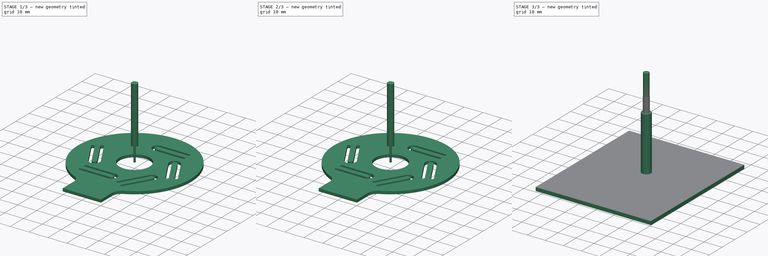
[diagram: build sequence overview — one tinted view per stage of 3, left to right]
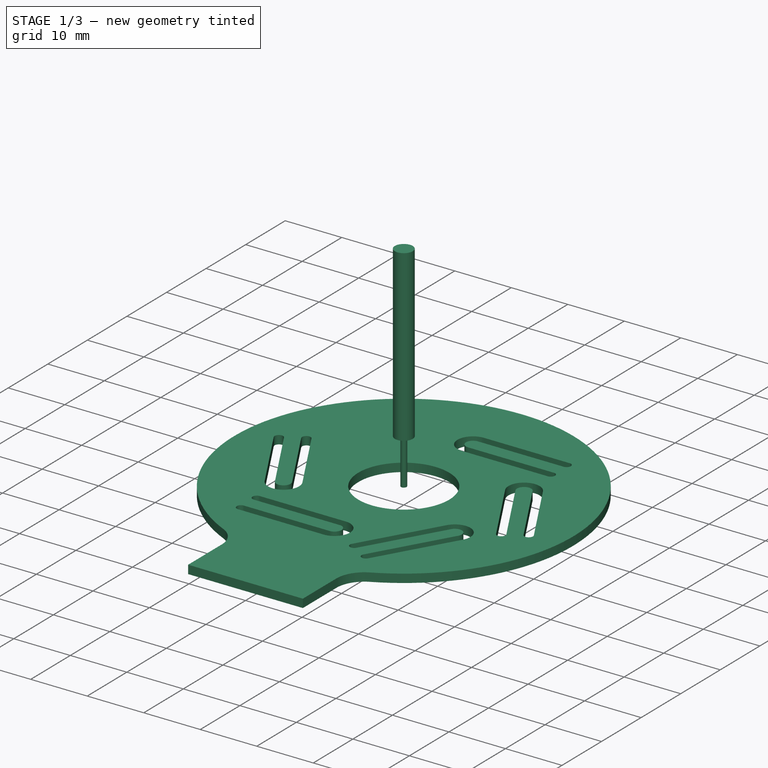
[diagram: stage 1 of 3 — iso view after this stage's code; geometry added in this stage tinted green]
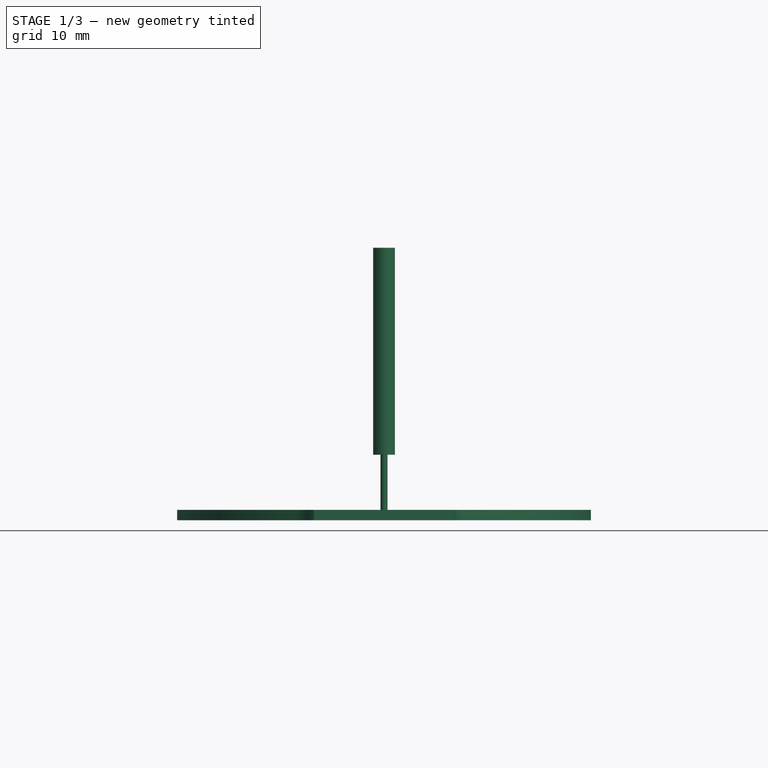
[diagram: stage 1 of 3 — front view after this stage's code; geometry added in this stage tinted green]
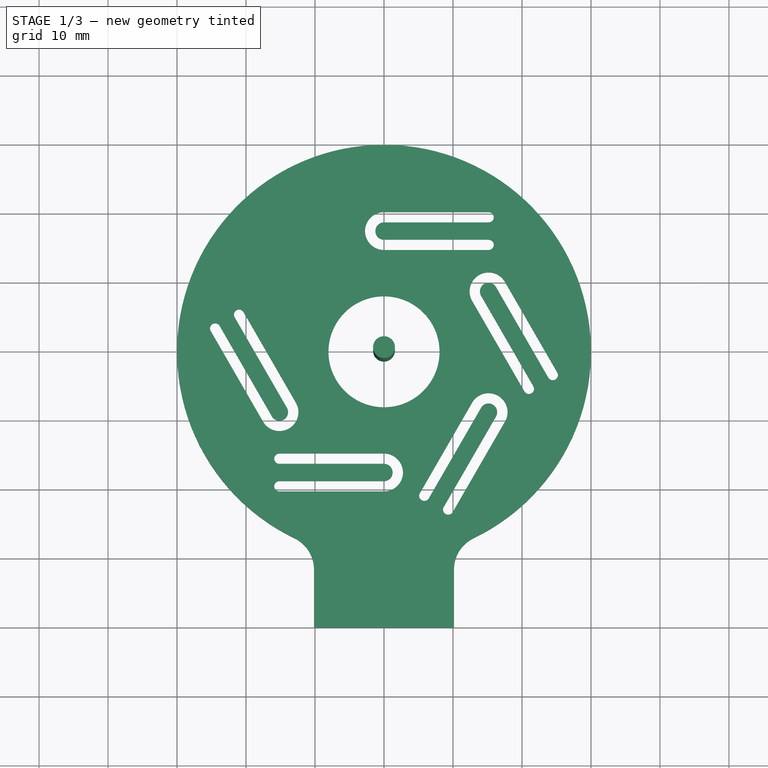
[diagram: stage 1 of 3 — top view after this stage's code; geometry added in this stage tinted green]
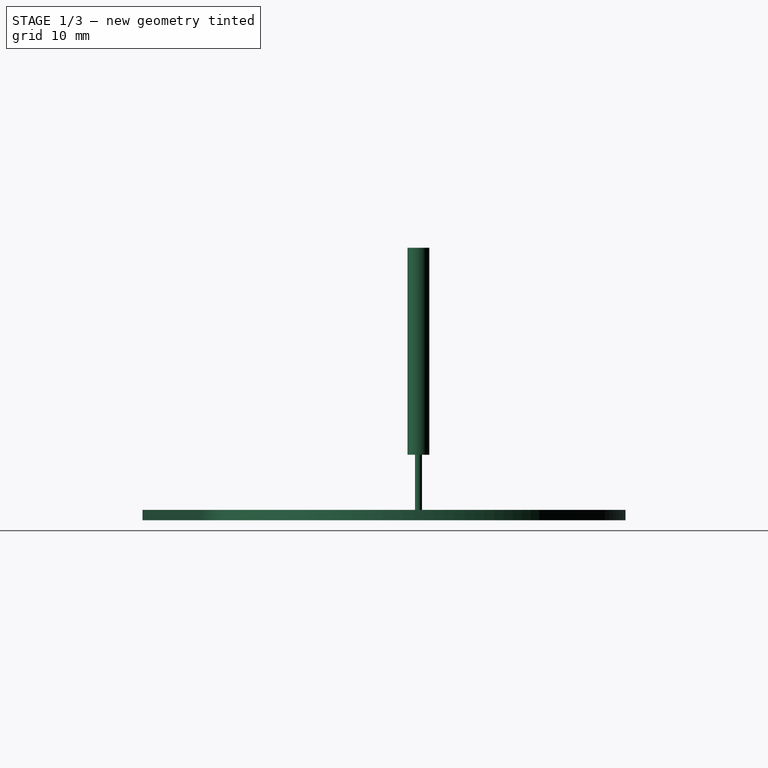
[diagram: stage 1 of 3 — right view after this stage's code; geometry added in this stage tinted green]
FCSTD DOCUMENT  (FreeCAD 0.22R37841 (Git))
Label: Prog
License: All rights reserved
LicenseURL: http://en.wikipedia.org/wiki/All_rights_reserved
objects: Path::FeaturePython×5, Part::FeaturePython×4, App::DocumentObjectGroup×3, Sketcher::SketchObject×1, PartDesign::Pad×1, PartDesign::Body×1, App::Part×1, App::FeaturePython×1
note: 10 computed .brp shape members not serialized (recipe doc carries the construction recipe); baked Part::Feature solids carry a one-line shape summary decoded from their .brp

FEATURE [Sketcher::SketchObject] Sketch
  AttachmentSupport = -> [XY_Plane001]
  FullyConstrained = true
  MapMode = 5
  sketch-geometry (56):
    g0: ArcOfCircle CenterX=0 CenterY=0 CenterZ=0 NormalX=0 NormalY=0 NormalZ=1 AngleXU=0 Radius=30 StartAngle=5.16005 EndAngle=10.5479
    g1: ArcOfCircle CenterX=-15.15 CenterY=-31.5512 CenterZ=0 NormalX=0 NormalY=0 NormalZ=1 AngleXU=0 Radius=5 StartAngle=0 EndAngle=1.12314
    g2: ArcOfCircle CenterX=15.15 CenterY=-31.5512 CenterZ=0 NormalX=0 NormalY=0 NormalZ=1 AngleXU=0 Radius=5 StartAngle=2.01846 EndAngle=3.14159
    g3: LineSegment StartX=-10.15 StartY=-31.5512 StartZ=0 EndX=-10.15 EndY=-40 EndZ=0
    g4: LineSegment StartX=10.15 StartY=-40 StartZ=0 EndX=10.15 EndY=-31.5512 EndZ=0
    g5: LineSegment StartX=-10.15 StartY=-40 StartZ=0 EndX=0 EndY=-40 EndZ=0
    g6: LineSegment StartX=0 StartY=-40 StartZ=0 EndX=10.15 EndY=-40 EndZ=0
    g7: LineSegment StartX=-15.1554 StartY=-8.75 StartZ=0 EndX=0 EndY=-17.5 EndZ=0
    g8: LineSegment StartX=0 StartY=-17.5 StartZ=0 EndX=15.1554 EndY=-8.75 EndZ=0
    g9: LineSegment StartX=15.1554 StartY=-8.75 StartZ=0 EndX=15.1554 EndY=8.75 EndZ=0
    g10: LineSegment StartX=15.1554 StartY=8.75 StartZ=0 EndX=-1.8e-15 EndY=17.5 EndZ=0
    g11: LineSegment StartX=-1.8e-15 StartY=17.5 StartZ=0 EndX=-15.1554 EndY=8.75 EndZ=0
    g12: LineSegment StartX=-15.1554 StartY=8.75 StartZ=0 EndX=-15.1554 EndY=-8.75 EndZ=0
    g13: Circle CenterX=0 CenterY=0 CenterZ=0 NormalX=0 NormalY=0 NormalZ=1 AngleXU=0 Radius=17.5
    g14: ArcOfCircle CenterX=-15.1554 CenterY=-8.75 CenterZ=0 NormalX=0 NormalY=0 NormalZ=1 AngleXU=0 Radius=1.25 StartAngle=3.66519 EndAngle=6.80678
    g15: ArcOfCircle CenterX=-15.1554 CenterY=-8.75 CenterZ=0 NormalX=0 NormalY=0 NormalZ=1 AngleXU=0 Radius=2.75 StartAngle=3.66519 EndAngle=6.80678
    g16: LineSegment StartX=-17.537 StartY=-10.125 StartZ=0 EndX=-25.1147 EndY=3 EndZ=0
    g17: LineSegment StartX=-16.238 StartY=-9.375 StartZ=0 EndX=-23.8157 EndY=3.75 EndZ=0
    g18: LineSegment StartX=-14.0729 StartY=-8.125 StartZ=0 EndX=-21.6506 EndY=5 EndZ=0
    g19: LineSegment StartX=-12.7739 StartY=-7.375 StartZ=0 EndX=-20.3516 EndY=5.75 EndZ=0
    g20: ArcOfCircle CenterX=-24.4652 CenterY=3.375 CenterZ=0 NormalX=0 NormalY=0 NormalZ=1 AngleXU=0 Radius=0.75 StartAngle=0.523599 EndAngle=3.66519
    g21: ArcOfCircle CenterX=-21.0011 CenterY=5.375 CenterZ=0 NormalX=0 NormalY=0 NormalZ=1 AngleXU=0 Radius=0.75 StartAngle=0.523599 EndAngle=3.66519
    g22: ArcOfCircle CenterX=0 CenterY=-17.5 CenterZ=0 NormalX=0 NormalY=0 NormalZ=1 AngleXU=0 Radius=1.25 StartAngle=4.71239 EndAngle=7.85398
    g23: ArcOfCircle CenterX=0 CenterY=-17.5 CenterZ=0 NormalX=0 NormalY=0 NormalZ=1 AngleXU=0 Radius=2.75 StartAngle=4.71239 EndAngle=7.85398
    g24: LineSegment StartX=-5e-16 StartY=-20.25 StartZ=0 EndX=-15.1554 EndY=-20.25 EndZ=0
    g25: LineSegment StartX=-2e-16 StartY=-18.75 StartZ=0 EndX=-15.1554 EndY=-18.75 EndZ=0
    g26: LineSegment StartX=4e-16 StartY=-16.25 StartZ=0 EndX=-15.1554 EndY=-16.25 EndZ=0
    g27: LineSegment StartX=8e-16 StartY=-14.75 StartZ=0 EndX=-15.1554 EndY=-14.75 EndZ=0
    g28: ArcOfCircle CenterX=-15.1554 CenterY=-19.5 CenterZ=0 NormalX=0 NormalY=0 NormalZ=1 AngleXU=0 Radius=0.75 StartAngle=1.5708 EndAngle=4.71239
    g29: ArcOfCircle CenterX=-15.1554 CenterY=-15.5 CenterZ=0 NormalX=0 NormalY=0 NormalZ=1 AngleXU=0 Radius=0.75 StartAngle=1.5708 EndAngle=4.71239
    g30: ArcOfCircle CenterX=15.1554 CenterY=-8.75 CenterZ=0 NormalX=0 NormalY=0 NormalZ=1 AngleXU=0 Radius=1.25 StartAngle=5.75959 EndAngle=8.90118
    g31: ArcOfCircle CenterX=15.1554 CenterY=-8.75 CenterZ=0 NormalX=0 NormalY=0 NormalZ=1 AngleXU=0 Radius=2.75 StartAngle=5.75959 EndAngle=8.90118
    g32: LineSegment StartX=17.537 StartY=-10.125 StartZ=0 EndX=9.95929 EndY=-23.25 EndZ=0
    g33: LineSegment StartX=16.238 StartY=-9.375 StartZ=0 EndX=8.66025 EndY=-22.5 EndZ=0
    g34: LineSegment StartX=14.0729 StartY=-8.125 StartZ=0 EndX=6.49519 EndY=-21.25 EndZ=0
    g35: LineSegment StartX=12.7739 StartY=-7.375 StartZ=0 EndX=5.19615 EndY=-20.5 EndZ=0
    g36: ArcOfCircle CenterX=9.30977 CenterY=-22.875 CenterZ=0 NormalX=0 NormalY=0 NormalZ=1 AngleXU=0 Radius=0.75 StartAngle=2.61799 EndAngle=5.75959
    g37: ArcOfCircle CenterX=5.84567 CenterY=-20.875 CenterZ=0 NormalX=0 NormalY=0 NormalZ=1 AngleXU=0 Radius=0.75 StartAngle=2.61799 EndAngle=5.75959
    g38: ArcOfCircle CenterX=15.1554 CenterY=8.75 CenterZ=0 NormalX=0 NormalY=0 NormalZ=1 AngleXU=0 Radius=1.25 StartAngle=0.523599 EndAngle=3.66519
    g39: ArcOfCircle CenterX=15.1554 CenterY=8.75 CenterZ=0 NormalX=0 NormalY=0 NormalZ=1 AngleXU=0 Radius=2.75 StartAngle=0.523599 EndAngle=3.66519
    g40: LineSegment StartX=17.537 StartY=10.125 StartZ=0 EndX=25.1147 EndY=-3 EndZ=0
    g41: LineSegment StartX=16.238 StartY=9.375 StartZ=0 EndX=23.8157 EndY=-3.75 EndZ=0
    g42: LineSegment StartX=14.0729 StartY=8.125 StartZ=0 EndX=21.6506 EndY=-5 EndZ=0
    g43: LineSegment StartX=12.7739 StartY=7.375 StartZ=0 EndX=20.3516 EndY=-5.75 EndZ=0
    g44: ArcOfCircle CenterX=24.4652 CenterY=-3.375 CenterZ=0 NormalX=0 NormalY=0 NormalZ=1 AngleXU=0 Radius=0.75 StartAngle=3.66519 EndAngle=6.80678
    g45: ArcOfCircle CenterX=21.0011 CenterY=-5.375 CenterZ=0 NormalX=0 NormalY=0 NormalZ=1 AngleXU=0 Radius=0.75 StartAngle=3.66519 EndAngle=6.80678
    g46: ArcOfCircle CenterX=-1.8e-15 CenterY=17.5 CenterZ=0 NormalX=0 NormalY=0 NormalZ=1 AngleXU=0 Radius=1.25 StartAngle=1.5708 EndAngle=4.71239
    g47: ArcOfCircle CenterX=-1.8e-15 CenterY=17.5 CenterZ=0 NormalX=0 NormalY=0 NormalZ=1 AngleXU=0 Radius=2.75 StartAngle=1.5708 EndAngle=4.71239
    g48: LineSegment StartX=-1.6e-15 StartY=20.25 StartZ=0 EndX=15.1554 EndY=20.25 EndZ=0
    g49: LineSegment StartX=-1.7e-15 StartY=18.75 StartZ=0 EndX=15.1554 EndY=18.75 EndZ=0
    g50: LineSegment StartX=-2e-15 StartY=16.25 StartZ=0 EndX=15.1554 EndY=16.25 EndZ=0
    g51: LineSegment StartX=-2.3e-15 StartY=14.75 StartZ=0 EndX=15.1554 EndY=14.75 EndZ=0
    g52: ArcOfCircle CenterX=15.1554 CenterY=19.5 CenterZ=0 NormalX=0 NormalY=0 NormalZ=1 AngleXU=0 Radius=0.75 StartAngle=4.71239 EndAngle=7.85398
    g53: ArcOfCircle CenterX=15.1554 CenterY=15.5 CenterZ=0 NormalX=0 NormalY=0 NormalZ=1 AngleXU=0 Radius=0.75 StartAngle=4.71239 EndAngle=7.85398
    g54: Circle CenterX=0 CenterY=0 CenterZ=0 NormalX=0 NormalY=0 NormalZ=1 AngleXU=0 Radius=8.05
    g55: LineSegment StartX=0 StartY=0 StartZ=0 EndX=0 EndY=-40 EndZ=0
  constraints (131):
    c: Tangent(g1,g0) = 1.5708
    c: Tangent(g2,g0) = 1.5708
    c: Coincident(g5,g3)
    c: Coincident(g6,g5)
    c: Coincident(g6,g4)
    c: Equal(g5,g6)
    c: Equal(g2,g1)
    c: Coincident(g0,g-1)
    c: Tangent(g3,g1) = 1.5708
    c: Tangent(g4,g2) = 1.5708
    c: Coincident(g7,g8)
    c: Coincident(g8,g9)
    c: Coincident(g9,g10)
    c: Coincident(g10,g11)
    c: Coincident(g11,g12)
    c: Equal(g7, g8-g12) x5
    c: PointOnObject(g7,g13)
    c: PointOnObject(g8,g13)
    c: PointOnObject(g9,g13)
    c: PointOnObject(g10,g13)
    c: PointOnObject(g11,g13)
    c: Coincident(g13,g0)
    c: Diameter(g13) = 35
    c: Coincident(g14,g7)
    c: Coincident(g15,g7)
    c: Tangent(g20,g16) = 1.5708
    c: Tangent(g20,g17) = -1.5708
    c: Tangent(g21,g18) = 1.5708
    c: Tangent(g21,g19) = -1.5708
    c: Radius(g21) = 0.75
    c: Radius(g14) = 1.25
    c: Tangent(g28,g24) = 1.5708
    c: Tangent(g36,g32) = 1.5708
    c: Tangent(g44,g40) = 1.5708
    c: Tangent(g52,g48) = 1.5708
    c: Tangent(g28,g25) = -1.5708
    c: Tangent(g36,g33) = -1.5708
    c: Tangent(g44,g41) = -1.5708
    c: Tangent(g52,g49) = -1.5708
    c: Tangent(g29,g26) = 1.5708
    c: Tangent(g37,g34) = 1.5708
    c: Tangent(g45,g42) = 1.5708
    c: Tangent(g53,g50) = 1.5708
    c: Tangent(g29,g27) = -1.5708
    c: Tangent(g37,g35) = -1.5708
    c: Tangent(g45,g43) = -1.5708
    c: Tangent(g53,g51) = -1.5708
    c: Equal(g21,g29)
    c: Equal(g21,g37)
    c: Equal(g21,g45)
    c: Equal(g21,g53)
    c: Equal(g14,g22)
    c: Equal(g14,g30)
    c: Equal(g14,g38)
    c: Equal(g14,g46)
    c: Tangent(g35,g31) = -1.5708
    c: Tangent(g34,g30) = -1.5708
    c: Tangent(g33,g30) = 1.5708
    c: Tangent(g32,g31) = 1.5708
    c: Perpendicular(g27,g12)
    c: Parallel(g27,g26)
    c: Perpendicular(g35,g7)
    c: PointOnObject(g29,g12)
    c: PointOnObject(g28,g12)
    c: PointOnObject(g37,g7)
    c: PointOnObject(g36,g7)
    c: PointOnObject(g45,g8)
    c: PointOnObject(g44,g8)
    c: PointOnObject(g53,g9)
    c: PointOnObject(g52,g9)
    c: Coincident(g30,g31)
    c: Coincident(g30,g8)
    c: Coincident(g38,g39)
    c: Tangent(g43,g39) = -1.5708
    c: Coincident(g38,g9)
    c: Tangent(g42,g38) = -1.5708
    c: Tangent(g41,g38) = 1.5708
    c: Tangent(g40,g39) = 1.5708
    c: Coincident(g46,g47)
    c: Coincident(g46,g10)
    c: Tangent(g51,g47) = -1.5708
    c: Tangent(g50,g46) = -1.5708
    c: Tangent(g49,g46) = 1.5708
    c: Tangent(g48,g47) = 1.5708
    c: Perpendicular(g51,g9)
    c: Parallel(g51,g50)
    c: Parallel(g50,g49)
    c: Parallel(g49,g48)
    c: Parallel(g43,g42)
    c: Parallel(g42,g41)
    c: Parallel(g41,g40)
    c: Perpendicular(g8,g43)
    c: Parallel(g35,g34)
    c: Parallel(g34,g33)
    c: Parallel(g33,g32)
    c: Coincident(g22,g23)
    c: Coincident(g22,g7)
    c: Tangent(g26,g22) = -1.5708
    c: Tangent(g25,g22) = 1.5708
    c: Tangent(g24,g23) = 1.5708
    c: Tangent(g27,g23) = -1.5708
    c: Parallel(g26,g25)
    c: Parallel(g25,g24)
    c: Coincident(g54,g0)
    c: Diameter(g54) = 16.1
    c: Distance(g4,g3) = 20.3
    c: Radius(g0) = 30
    c: Radius(g2) = 5
    c: Coincident(g55,g0)
    c: Coincident(g55,g5)
    c: Perpendicular(g6,g55)
    c: Perpendicular(g55,g5)
    c: Parallel(g55,g3)
    c: Parallel(g55,g4)
    c: Distance(g55,g55) = 40
    c: PointOnObject(g7,g55)
    c: Tangent(g16,g15) = 1.5708
    c: Tangent(g19,g15) = -1.5708
    c: Tangent(g18,g14) = -1.5708
    c: Tangent(g17,g14) = 1.5708
    c: Coincident(g12,g7)
    c: PointOnObject(g7,g13)
    c: Parallel(g55,g-2)
    c: Parallel(g18,g19)
    c: Parallel(g17,g16)
    c: Parallel(g17,g18)
    c: Perpendicular(g11,g19)
    c: PointOnObject(g21,g11)
    c: PointOnObject(g20,g11)
    c: DistanceX(g7,g-1) = 15.1554
    c: DistanceY(g7,g-1) = 8.75
FEATURE [PartDesign::Pad] Pad
  Direction = (0,0,1)
  Length = 1.5
  Length2 = 10
  Profile = -> Sketch
  ReferenceAxis = -> Sketch [N_Axis]
  Reversed = true
  Suppressed = false
  Type = 0
FEATURE [Part::FeaturePython] ToolBit001  label="1mm Endmill"  # Path/CAM toolbit (typed FeaturePython)
  BitPropertyNames = Chipload | CuttingEdgeHeight | Diameter | Flutes | Length | Material | ShankDiameter | SpindleDirection
  BitShape = <userpath>/Documents/FreeCAD/Tools/Shape/endmill.fcstd
  Chipload = 0
  CuttingEdgeHeight = 8
  Diameter = 1
  File = <userpath>/Documents/FreeCAD/Tools/Bit/1mm_Endmill.fctb
  Flutes = 2
  Length = 38
  Material = 0
  ShankDiameter = 3.17
  ShapeName = endmill
  SpindleDirection = 0
FEATURE [Path::FeaturePython] _mm_Endmill  label="1mm Endmill001"  # Path/CAM operation (typed FeaturePython)
  HorizFeed = 2
  HorizRapid = 0
  SpindleDir = 0
  SpindleSpeed = 1000
  Tool = -> ToolBit001
  ToolNumber = 2
  VertFeed = 1
  VertRapid = 0
  expr: HorizRapid = SetupSheet.HorizRapid
  expr: VertRapid = SetupSheet.VertRapid
FEATURE [App::DocumentObjectGroup] Tools
  Group = -> [TC__Default_Tool,_mm_Endmill]
FEATURE [Path::FeaturePython] Profile  # Path/CAM operation (typed FeaturePython)
  Active = true
  AreaParams:
    Tolerance = 1e-07
    FitArcs = True
    Simplify = False
    CleanDistance = 0.0
    Accuracy = 0.01
    Unit = 1.0
    MinArcPoints = 4
    MaxArcPoints = 100
    ClipperScale = 10000000.0
    Fill = 0
    Coplanar = 0
    Reorient = True
    Outline = False
    Explode = False
    OpenMode = 0
    Deflection = 0.01
    SubjectFill = 0
    ClipFill = 0
    Offset = -0.5
    ExtraPass = 0
    Stepover = 0.0
    LastStepover = 0.0
    JoinType = 0
    EndType = 0
    MiterLimit = 2.0
    RoundPrecision = 0.0
    PocketMode = 0
    ToolRadius = 1.0
    PocketExtraOffset = 0.0
    PocketStepover = 0.0
    PocketLastStepover = 0.0
    FromCenter = False
    Angle = 45.0
    AngleShift = 0.0
    Shift = 0.0
    Thicken = False
    SectionCount = -1
    Stepdown = 1.0
    SectionOffset = 0.0
    SectionTolerance = 1e-06
    SectionMode = 2
    Project = False
  Base = -> [Clone]
  ClearanceHeight = 5
  CoolantMode = 0
  CycleTime = 00:14:28
  Direction = 0
  FinalDepth = -2
  HandleMultipleFeatures = 0
  JoinType = 0
  MiterLimit = 0.1
  OffsetExtra = 0
  OpFinalDepth = -1.5
  OpStartDepth = 0
  OpStockZMax = 0
  OpStockZMin = -2
  OpToolDiameter = 1
  PathParams = {'orientation': 1, 'feedrate': 2.0, 'feedrate_v': 1.0, 'verbose': True, 'resume_height': 3.0, 'retraction': 5.0, 'return_end': True, 'preamble': False, 'start': Vector (1.8108427845089694, -16.16764649908977, 5.0)}
  SafeHeight = 3
  Side = 1
  SplitArcs = false
  StartDepth = 0
  StartPoint = (0,0,0)
  StepDown = 0.5
  ToolController = -> _mm_Endmill
  UseComp = true
  UseStartPoint = false
  processCircles = false
  processHoles = false
  processPerimeter = true
  expr: ClearanceHeight = OpStockZMax + SetupSheet.ClearanceHeightOffset
  expr: FinalDepth = -2
  expr: SafeHeight = OpStockZMax + SetupSheet.SafeHeightOffset
  expr: StartDepth = OpStartDepth
  expr: StepDown = 0.5
FEATURE [Path::FeaturePython] Profile001  # Path/CAM operation (typed FeaturePython)
  Active = true
  AreaParams:
    Tolerance = 1e-07
    FitArcs = True
    Simplify = False
    CleanDistance = 0.0
    Accuracy = 0.01
    Unit = 1.0
    MinArcPoints = 4
    MaxArcPoints = 100
    ClipperScale = 10000000.0
    Fill = 0
    Coplanar = 0
    Reorient = True
    Outline = False
    Explode = False
    OpenMode = 0
    Deflection = 0.01
    SubjectFill = 0
    ClipFill = 0
    Offset = 0.5
    ExtraPass = 0
    Stepover = 0.0
    LastStepover = 0.0
    JoinType = 0
    EndType = 0
    MiterLimit = 2.0
    RoundPrecision = 0.0
    PocketMode = 0
    ToolRadius = 1.0
    PocketExtraOffset = 0.0
    PocketStepover = 0.0
    PocketLastStepover = 0.0
    FromCenter = False
    Angle = 45.0
    AngleShift = 0.0
    Shift = 0.0
    Thicken = False
    SectionCount = -1
    Stepdown = 1.0
    SectionOffset = 0.0
    SectionTolerance = 1e-06
    SectionMode = 2
    Project = False
  Base = -> [Clone]
  ClearanceHeight = 5
  CoolantMode = 0
  CycleTime = 00:07:34
  Direction = 0
  FinalDepth = -2
  HandleMultipleFeatures = 0
  JoinType = 0
  MiterLimit = 0.1
  OffsetExtra = 0
  OpFinalDepth = -1.5
  OpStartDepth = 0
  OpStockZMax = 0
  OpStockZMin = -2
  OpToolDiameter = 1
  PathParams = {'orientation': 1, 'feedrate': 2.0, 'feedrate_v': 1.0, 'verbose': True, 'resume_height': 3.0, 'retraction': 5.0, 'return_end': True, 'preamble': False}
  SafeHeight = 3
  Side = 0
  SplitArcs = false
  StartDepth = 0
  StartPoint = (0,0,0)
  StepDown = 0.5
  ToolController = -> _mm_Endmill
  UseComp = true
  UseStartPoint = false
  processCircles = false
  processHoles = false
  processPerimeter = true
  expr: ClearanceHeight = OpStockZMax + SetupSheet.ClearanceHeightOffset
  expr: FinalDepth = -2
  expr: SafeHeight = OpStockZMax + SetupSheet.SafeHeightOffset
  expr: StartDepth = OpStartDepth
  expr: StepDown = 0.5
FEATURE [App::DocumentObjectGroup] Operations
  Group = -> [Profile,Profile001]
FEATURE [Path::FeaturePython] Job  # Path/CAM operation (typed FeaturePython)
  CycleTime = 00:22:02
  Fixtures = G54
  GeometryTolerance = 0.01
  JobType = 0
  Model = -> Model
  Operations = -> Operations
  OrderOutputBy = 0
  PostProcessor = 11
  SetupSheet = -> SetupSheet
  SplitOutput = false
  Stock = -> Stock
  Tools = -> Tools
note: 1 file-system path scrubbed to <path> (originals preserved in the JSON sidecar)
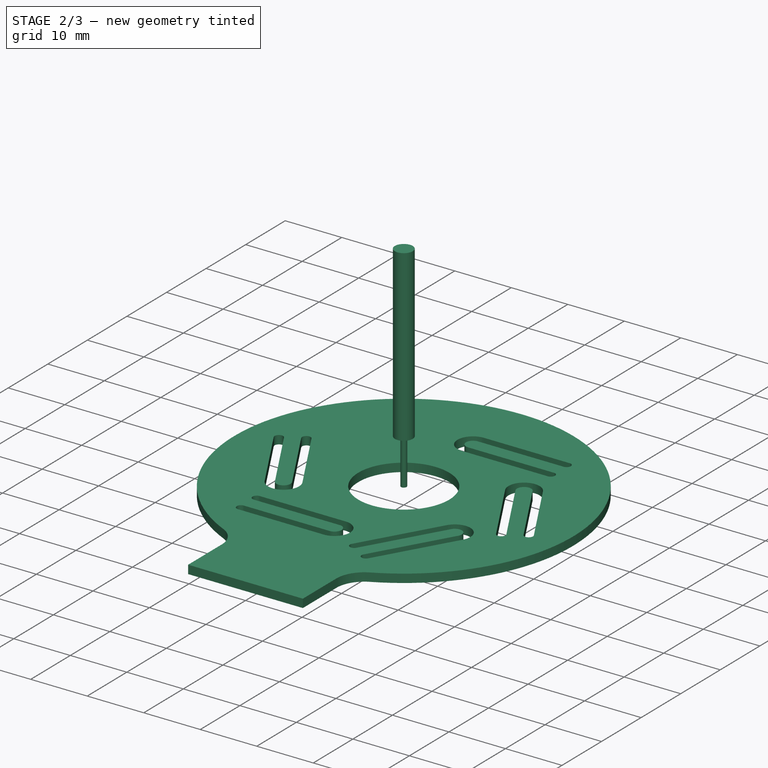
[diagram: stage 2 of 3 — iso view after this stage's code; geometry added in this stage tinted green]
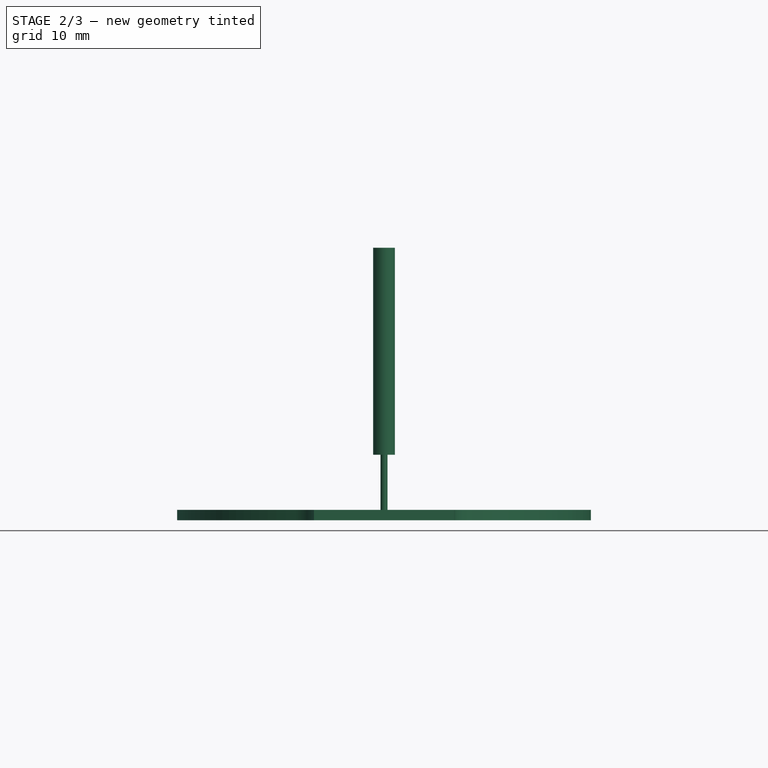
[diagram: stage 2 of 3 — front view after this stage's code; geometry added in this stage tinted green]
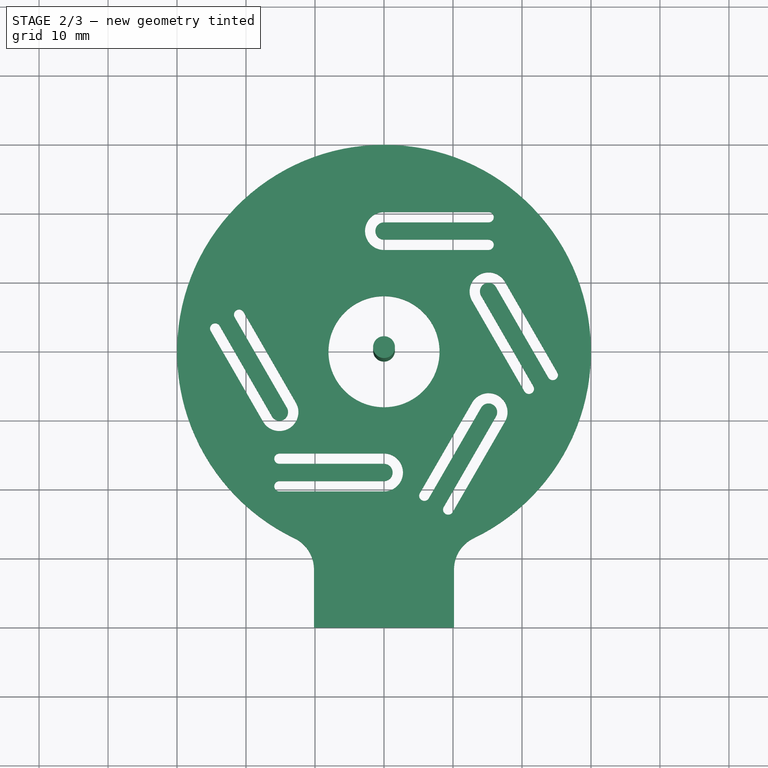
[diagram: stage 2 of 3 — top view after this stage's code; geometry added in this stage tinted green]
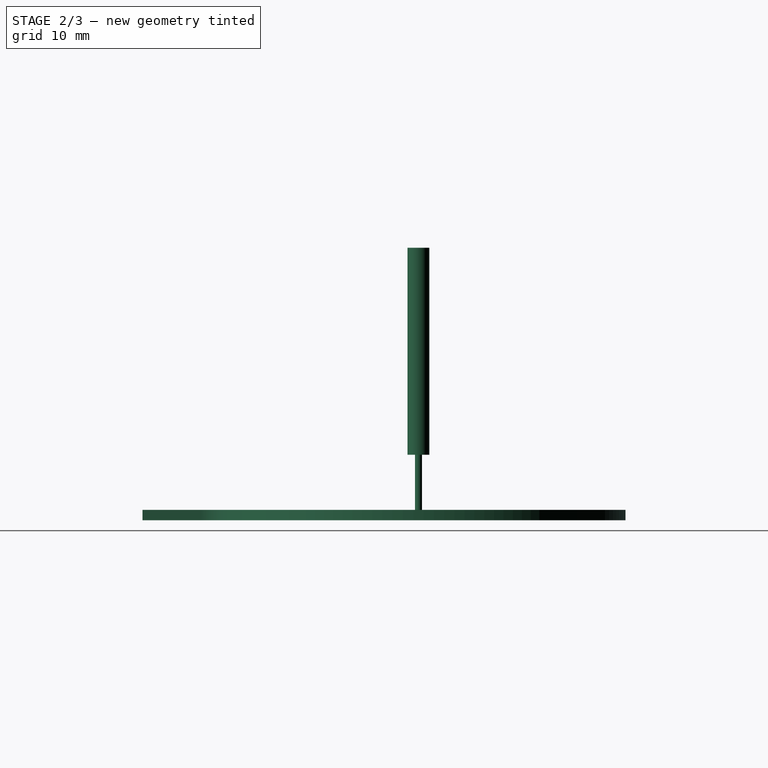
[diagram: stage 2 of 3 — right view after this stage's code; geometry added in this stage tinted green]
FEATURE [PartDesign::Body] Body
  AllowCompound = false
  Group = -> [Sketch,Pad]
  Origin = -> Origin001
  Tip = -> Pad
FEATURE [App::Part] Part
  Group = -> [Body]
  Origin = -> Origin
FEATURE [App::FeaturePython] SetupSheet  # Path/CAM operation (typed FeaturePython)
  ClearanceHeightExpression = OpStockZMax+SetupSheet.ClearanceHeightOffset
  ClearanceHeightOffset = 5
  CoolantMode = 0
  CoolantModes = None | Flood | Mist
  FinalDepthExpression = OpFinalDepth
  HorizRapid = 0
  SafeHeightExpression = OpStockZMax+SetupSheet.SafeHeightOffset
  SafeHeightOffset = 3
  StartDepthExpression = OpStartDepth
  StepDownExpression = OpToolDiameter
  VertRapid = 0
FEATURE [Part::FeaturePython] Clone  label="Model-Part"  # Draft clone (typed FeaturePython)
  AttacherType = Attacher::AttachEngine3D
  Fuse = false
  Objects = -> [Part]
  PathResource = Model
  Scale = (1,1,1)
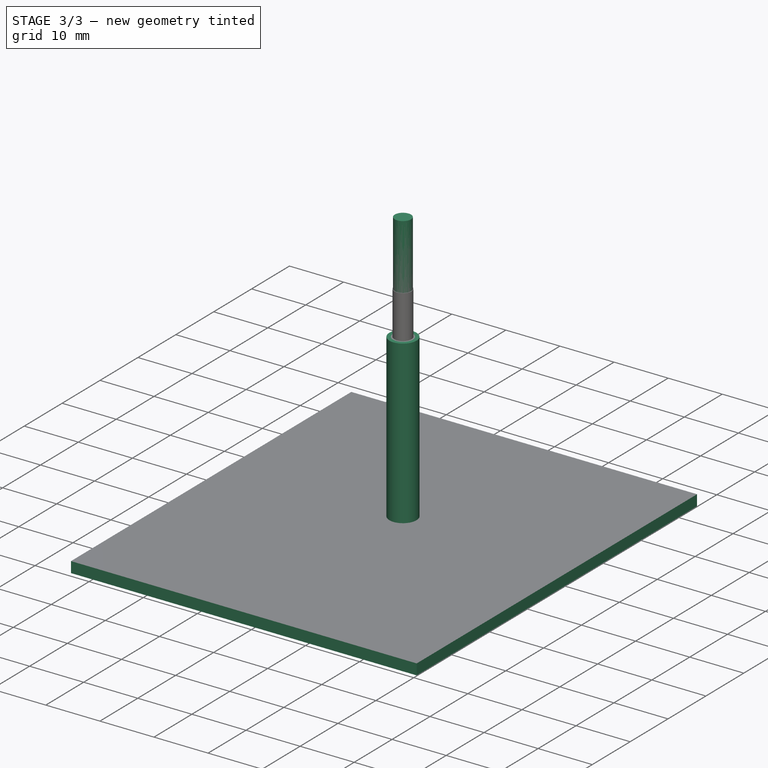
[diagram: stage 3 of 3 — iso view after this stage's code; geometry added in this stage tinted green]
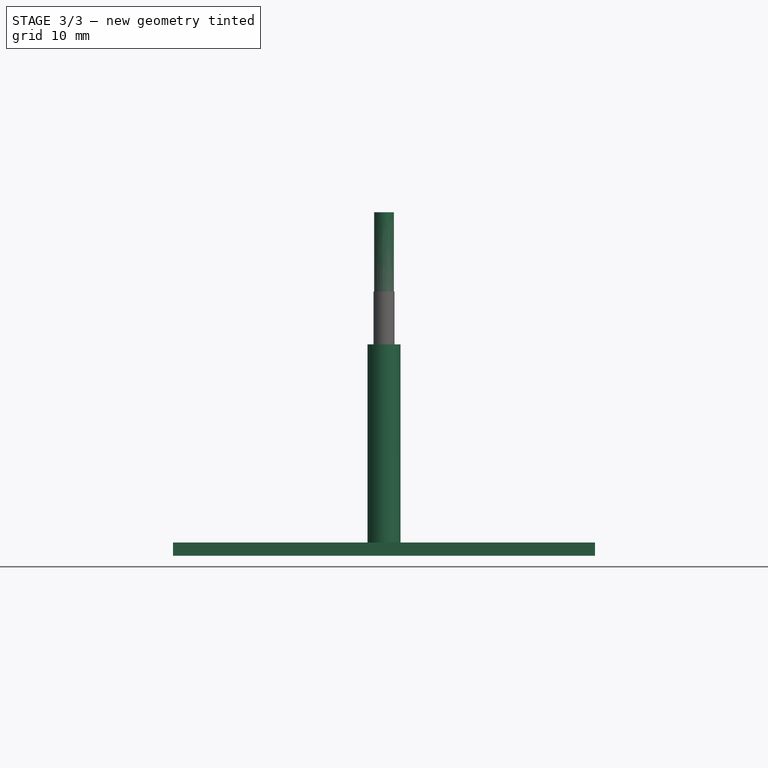
[diagram: stage 3 of 3 — front view after this stage's code; geometry added in this stage tinted green]
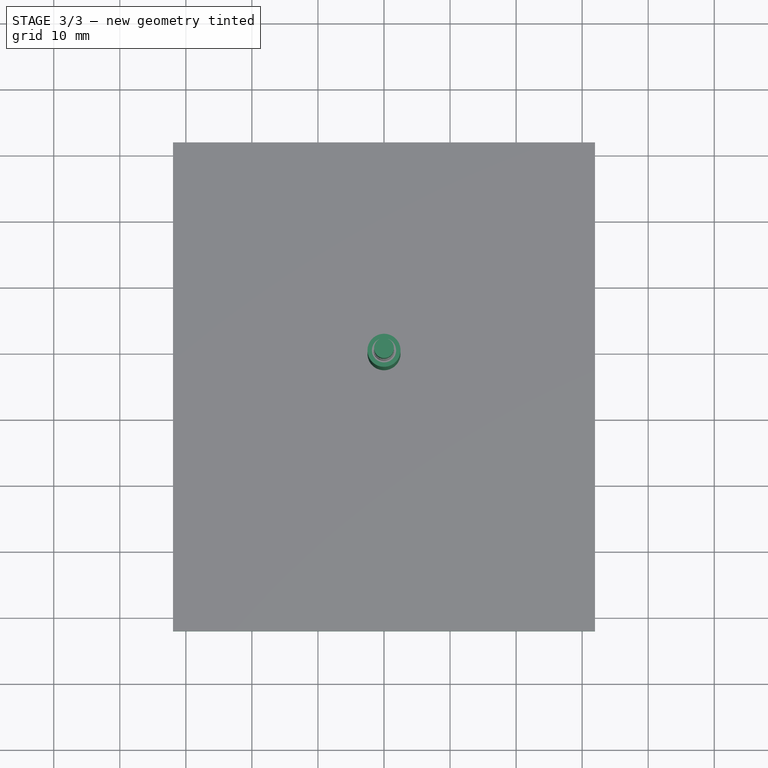
[diagram: stage 3 of 3 — top view after this stage's code; geometry added in this stage tinted green]
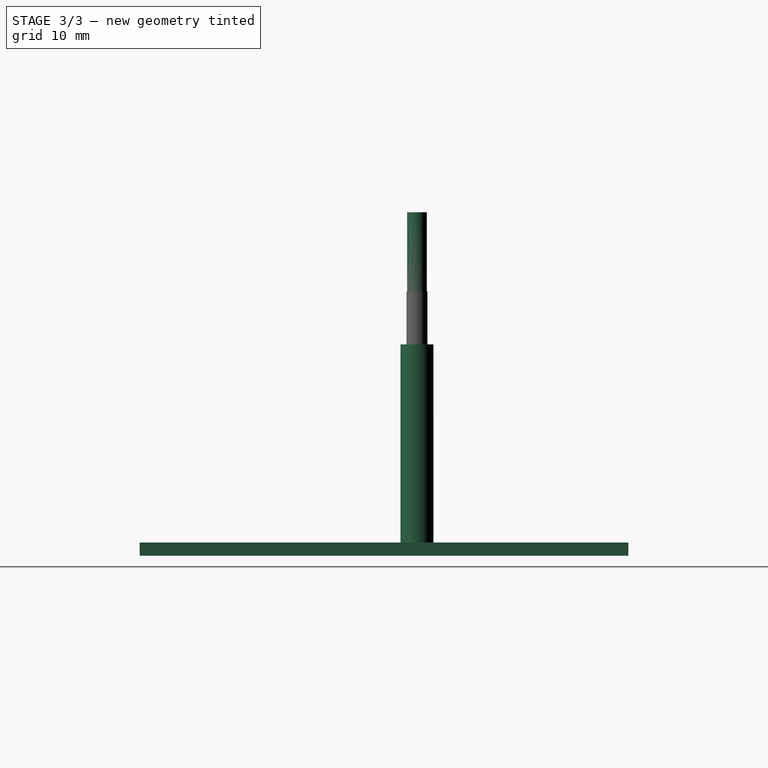
[diagram: stage 3 of 3 — right view after this stage's code; geometry added in this stage tinted green]
FEATURE [App::DocumentObjectGroup] Model
  Group = -> [Clone]
FEATURE [Part::FeaturePython] ToolBit  label="Endmill"  # Path/CAM toolbit (typed FeaturePython)
  BitPropertyNames = Chipload | CuttingEdgeHeight | Diameter | Flutes | Length | Material | ShankDiameter | SpindleDirection
  BitShape = <path>
  Chipload = 0
  CuttingEdgeHeight = 30
  Diameter = 5
  Flutes = 0
  Length = 50
  Material = 0
  ShankDiameter = 3
  ShapeName = endmill
  SpindleDirection = 0
FEATURE [Path::FeaturePython] TC__Default_Tool  label="TC: Default Tool"  # Path/CAM operation (typed FeaturePython)
  HorizFeed = 0
  HorizRapid = 0
  SpindleDir = 0
  SpindleSpeed = 0
  Tool = -> ToolBit
  ToolNumber = 1
  VertFeed = 0
  VertRapid = 0
  expr: HorizRapid = SetupSheet.HorizRapid
  expr: VertRapid = SetupSheet.VertRapid
FEATURE [Part::FeaturePython] Stock  # WARN: FeaturePython — macro-defined, semantics opaque (R4)
  Base = -> Model
  ExtXneg = 2
  ExtXpos = 2
  ExtYneg = 2
  ExtYpos = 2
  ExtZneg = 0.5
  ExtZpos = 0
  Placement = pos=(-29.9539,-40,-1.5) rot=(0,0,1;0rad)
  StockType = FromBase
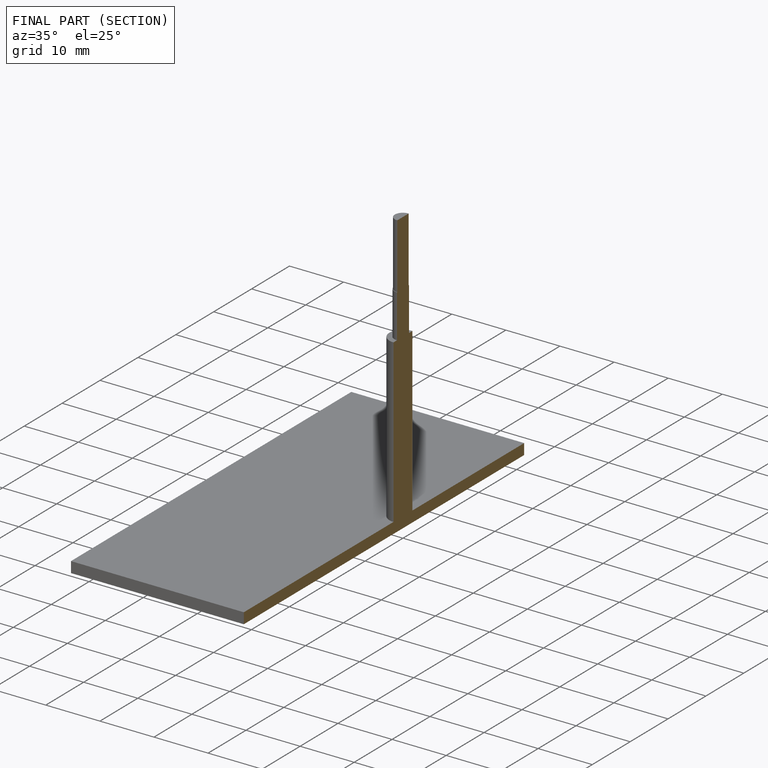
[diagram: finished part — half-section view (interior)]
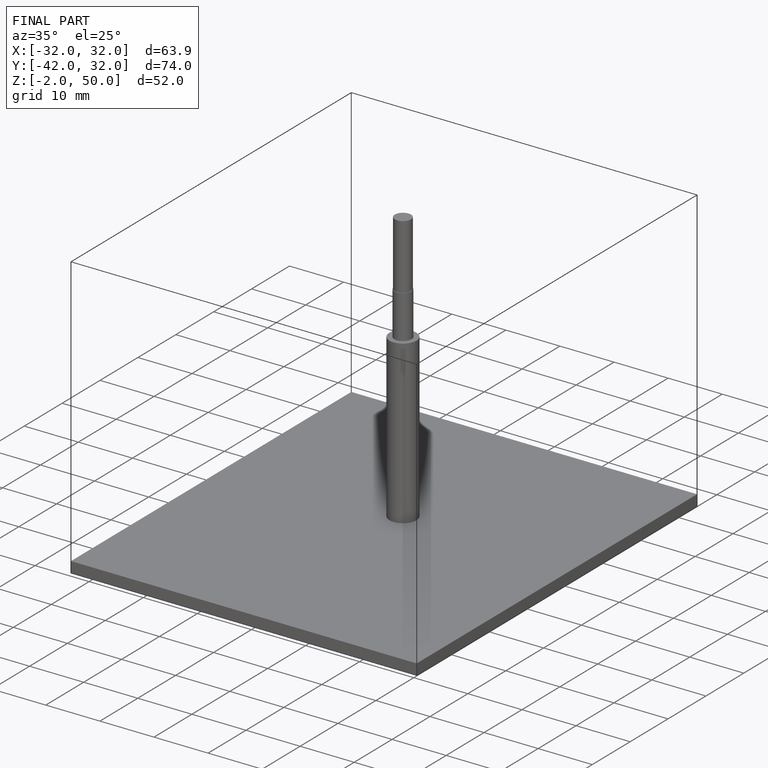
[diagram: finished part — iso view with bounding-box wireframe]
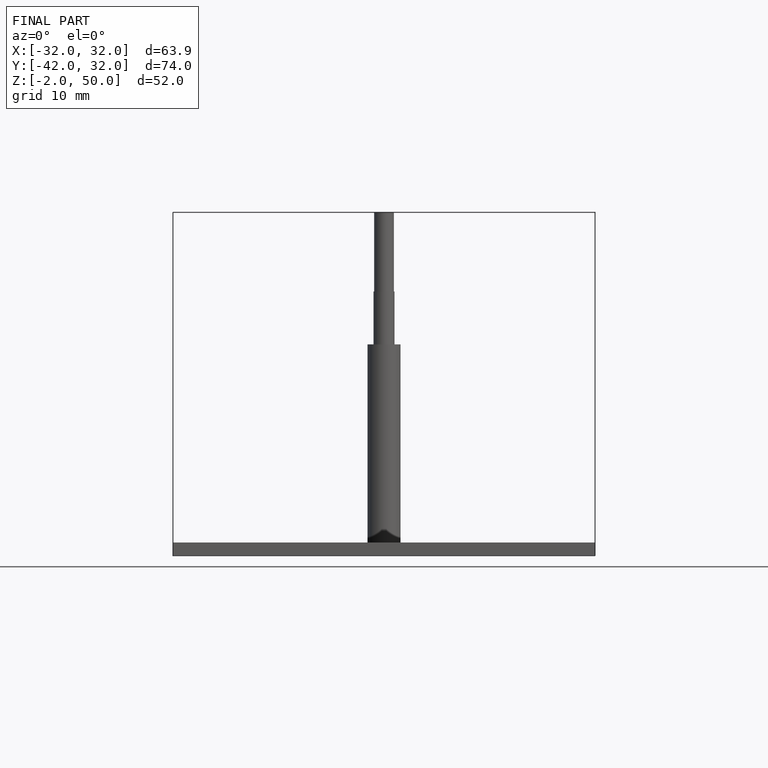
[diagram: finished part — front view with bounding-box wireframe]
